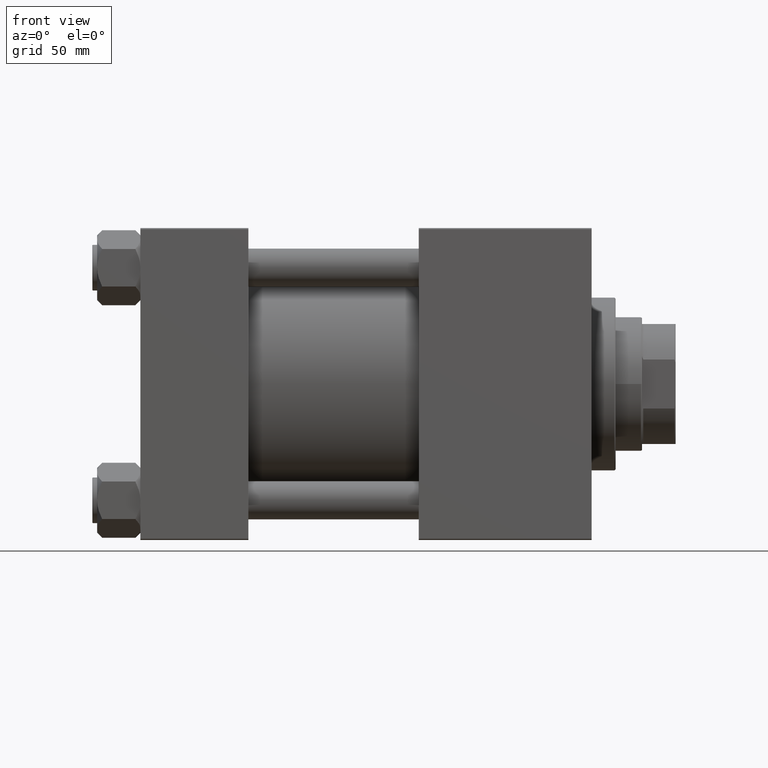
[diagram: clean part render]
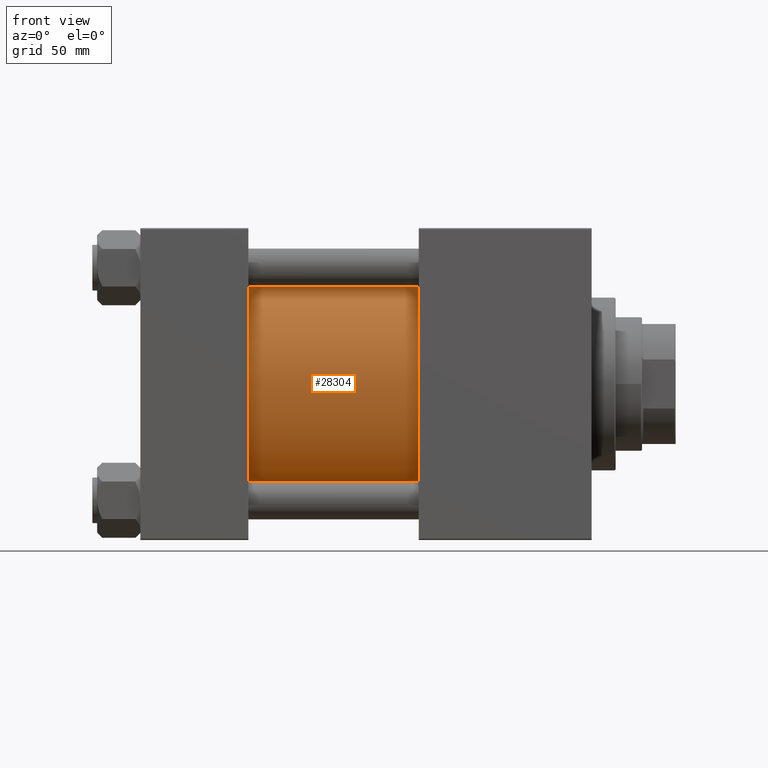
[diagram: same view with one face highlighted and labeled with its STEP entity id]
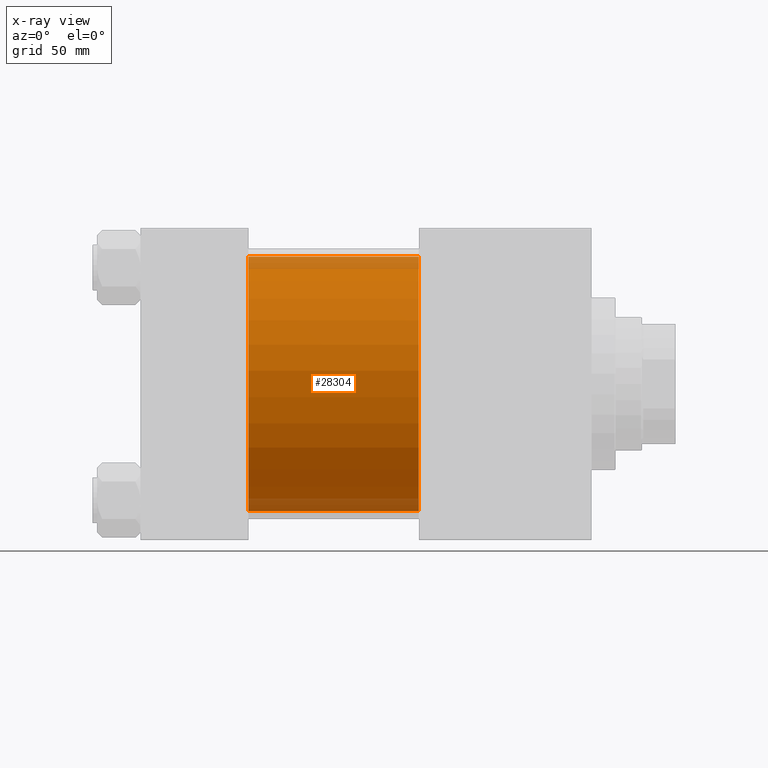
[diagram: x-ray of the same camera — body ghosted, the highlighted face saturated]
A machine part, front view. The second image highlights one B-rep face of the part: STEP entity #28304.
The next image is the same camera in x-ray: the body ghosted, the highlighted face saturated — about 10% of this face is hidden behind the body in this view.
In plain terms, the highlighted cylindrical surface (partial cylindrical patch) has radius 53 mm, axis along (-1, -0, -0).
Its self-contained STEP definition (entity closure, byte-faithful):
#729 = EDGE_CURVE ( 'NONE', #42553, #15604, #35398, .T. ) ;
#938 = AXIS2_PLACEMENT_3D ( 'NONE', #8439, #44101, #8944 ) ;
#4364 = CARTESIAN_POINT ( 'NONE',  ( 115.9999999999999858, -2.602085213965210642E-15, 0.000000000000000000 ) ) ;
#4890 = ORIENTED_EDGE ( 'NONE', *, *, #38250, .F. ) ;
#7698 = ORIENTED_EDGE ( 'NONE', *, *, #8314, .F. ) ;
#8314 = EDGE_CURVE ( 'NONE', #10600, #19033, #22893, .T. ) ;
#8439 = CARTESIAN_POINT ( 'NONE',  ( 45.00000000000000000, -2.602085213965210642E-15, 0.000000000000000000 ) ) ;
#8449 = DIRECTION ( 'NONE',  ( 0.000000000000000000, 0.000000000000000000, -1.000000000000000000 ) ) ;
#8944 = DIRECTION ( 'NONE',  ( 0.000000000000000000, 0.000000000000000000, 1.000000000000000000 ) ) ;
#10600 = VERTEX_POINT ( 'NONE', #22402 ) ;
#11034 = EDGE_CURVE ( 'NONE', #15604, #19033, #28808, .T. ) ;
#11551 = DIRECTION ( 'NONE',  ( 1.000000000000000000, 0.000000000000000000, 0.000000000000000000 ) ) ;
#12287 = VECTOR ( 'NONE', #19325, 1000.000000000000000 ) ;
#14144 = DIRECTION ( 'NONE',  ( -1.000000000000000000, -0.000000000000000000, -0.000000000000000000 ) ) ;
#15604 = VERTEX_POINT ( 'NONE', #42938 ) ;
#17508 = DIRECTION ( 'NONE',  ( 0.000000000000000000, 0.000000000000000000, 1.000000000000000000 ) ) ;
#17516 = ORIENTED_EDGE ( 'NONE', *, *, #11034, .T. ) ;
#18642 = CIRCLE ( 'NONE', #24396, 53.00000000000000711 ) ;
#19033 = VERTEX_POINT ( 'NONE', #49823 ) ;
#19325 = DIRECTION ( 'NONE',  ( -1.000000000000000000, -0.000000000000000000, -0.000000000000000000 ) ) ;
#19469 = ORIENTED_EDGE ( 'NONE', *, *, #729, .T. ) ;
#19525 = EDGE_LOOP ( 'NONE', ( #7698, #4890, #19469, #17516 ) ) ;
#22402 = CARTESIAN_POINT ( 'NONE',  ( 115.9999999999999858, 3.888542821515762466E-15, -53.00000000000000711 ) ) ;
#22815 = VECTOR ( 'NONE', #42852, 1000.000000000000000 ) ;
#22893 = LINE ( 'NONE', #38559, #12287 ) ;
#24189 = AXIS2_PLACEMENT_3D ( 'NONE', #49540, #14144, #17508 ) ;
#24396 = AXIS2_PLACEMENT_3D ( 'NONE', #4364, #11551, #8449 ) ;
#28304 = ADVANCED_FACE ( 'NONE', ( #41099 ), #49298, .T. ) ;
#28808 = CIRCLE ( 'NONE', #938, 53.00000000000000711 ) ;
#35398 = LINE ( 'NONE', #38993, #22815 ) ;
#38250 = EDGE_CURVE ( 'NONE', #42553, #10600, #18642, .T. ) ;
#38559 = CARTESIAN_POINT ( 'NONE',  ( 115.9999999999999858, 3.888542821515762466E-15, -53.00000000000000711 ) ) ;
#38993 = CARTESIAN_POINT ( 'NONE',  ( 115.9999999999999858, -2.602085213965210642E-15, 53.00000000000000711 ) ) ;
#41099 = FACE_OUTER_BOUND ( 'NONE', #19525, .T. ) ;
#41398 = CARTESIAN_POINT ( 'NONE',  ( 115.9999999999999858, -2.602085213965210642E-15, 53.00000000000000711 ) ) ;
#42553 = VERTEX_POINT ( 'NONE', #41398 ) ;
#42852 = DIRECTION ( 'NONE',  ( -1.000000000000000000, -0.000000000000000000, -0.000000000000000000 ) ) ;
#42938 = CARTESIAN_POINT ( 'NONE',  ( 45.00000000000000000, -2.602085213965210642E-15, 53.00000000000000711 ) ) ;
#44101 = DIRECTION ( 'NONE',  ( 1.000000000000000000, -0.000000000000000000, 0.000000000000000000 ) ) ;
#49298 = CYLINDRICAL_SURFACE ( 'NONE', #24189, 53.00000000000000711 ) ;
#49540 = CARTESIAN_POINT ( 'NONE',  ( 115.9999999999999858, -2.602085213965210642E-15, 0.000000000000000000 ) ) ;
#49823 = CARTESIAN_POINT ( 'NONE',  ( 45.00000000000000000, 3.888542821515762466E-15, -53.00000000000000711 ) ) ;